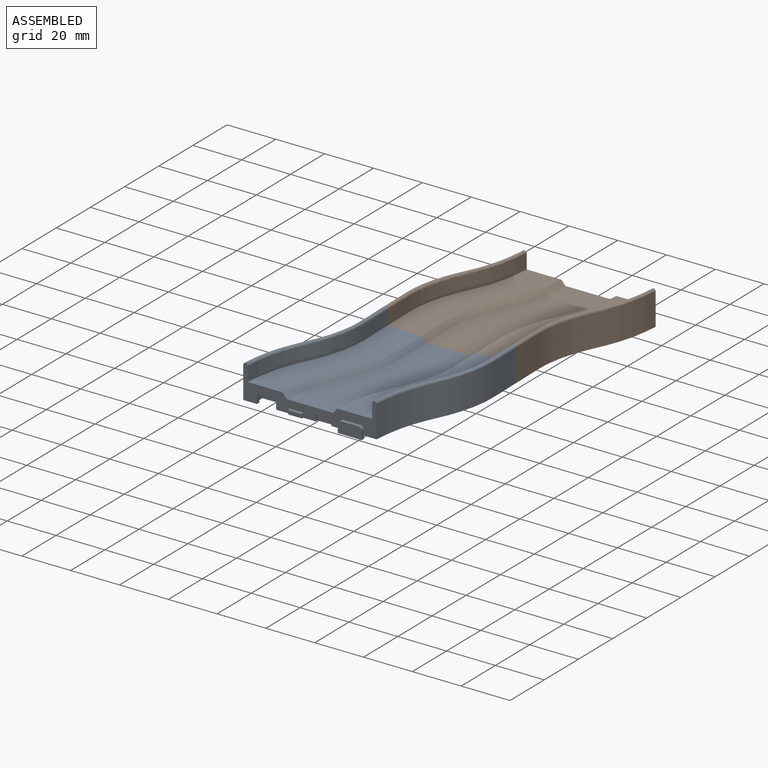
[diagram: assembled view]
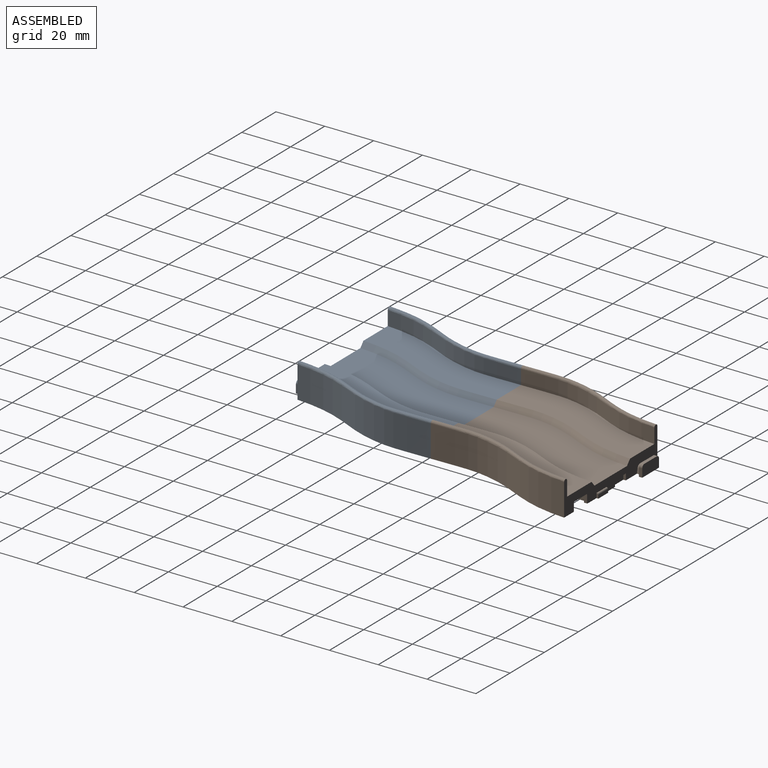
[diagram: assembled view, second angle]
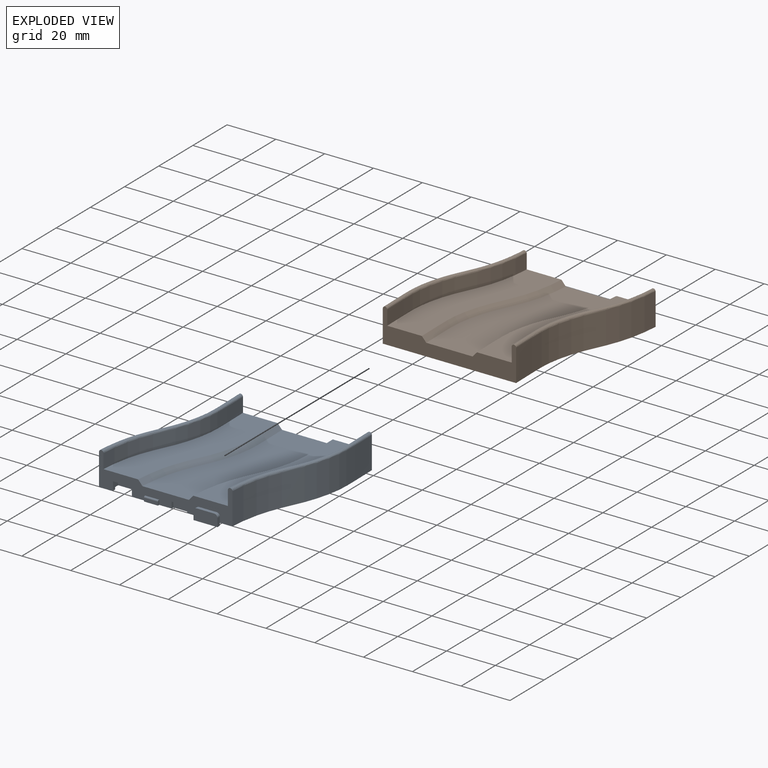
[diagram: exploded view]
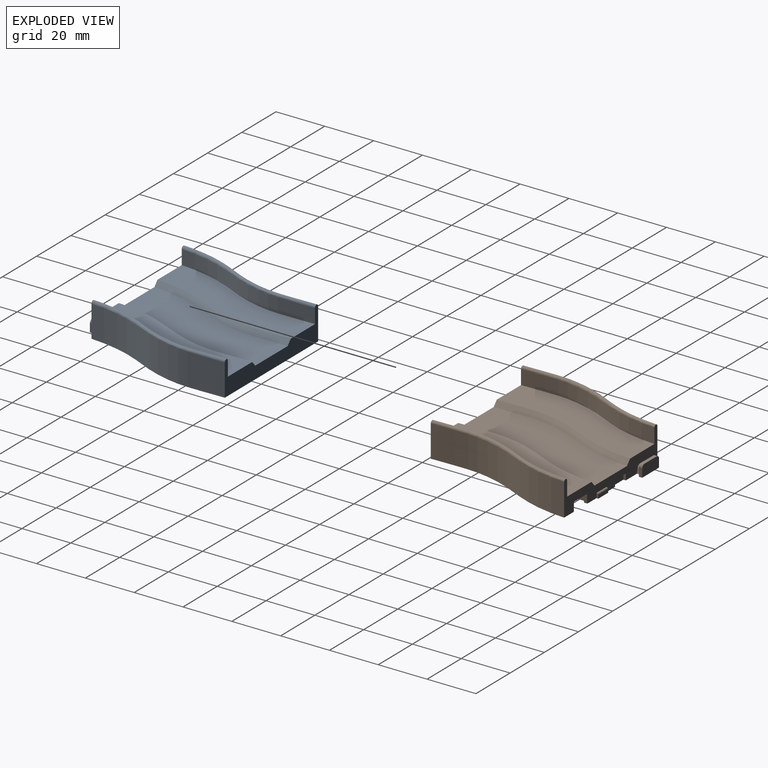
[diagram: exploded view, second angle]
ASSEMBLY  parts=2 mates=2
PART A: 56 faces, bbox 67.5x66.8x14.9 mm
  f0: plane 67.54x66.8mm, normal (0,0,-1), area 3414.4mm2, adj f1,f2,f6,f7,f17,f18,f19,f21
  f1: plane 54.61x13.97mm, normal (0,-1,0), area 296.6mm2, adj f0,f3,f4,f5,f6,f7,f8,f9
  f2: plane 54.61x13.97mm, normal (0,1,0), area 370.2mm2, adj f0,f3,f4,f5,f6,f7,f8,f9
  f3: plane 63.5x27.16mm, normal (0,0,1), area 903.2mm2, adj f1,f2,f4,f13
  f4: bspline ~63.5x12.93mm, area 390.6mm2, adj f1,f2,f3,f5
  f5: bspline ~63.5x14.74mm, area 182.8mm2, adj f1,f2,f4,f6
  f6: bspline ~63.5x13.07mm, area 857mm2, adj f0,f1,f2,f5
  f7: bspline ~63.5x13.07mm, area 857mm2, adj f0,f1,f2,f8
  f8: bspline ~63.5x14.74mm, area 182.8mm2, adj f1,f2,f7,f9
  f9: bspline ~63.5x12.93mm, area 390.6mm2, adj f1,f2,f8,f10
  f10: plane 63.5x27.16mm, normal (0,0,1), area 903.2mm2, adj f1,f2,f9,f11
  f11: bspline ~63.5x14.71mm, area 174.7mm2, adj f1,f2,f10,f12
  f12: plane 63.5x31.93mm, normal (0,0,1), area 1206.4mm2, adj f1,f2,f11,f13
  f13: bspline ~63.5x14.71mm, area 174.7mm2, adj f1,f2,f3,f12
  f14: plane 3.15x1.27mm, normal (1,0,0), area 4mm2, adj f1,f17,f23,f24
  f15: plane 3.15x1.27mm, normal (-1,0,0), area 4mm2, adj f1,f17,f22,f25
  f16: plane 7.24x1.27mm, normal (0,0,-1), area 9.2mm2, adj f1,f17,f22,f23
  f17: plane 10.36x5.61mm, normal (0,1,0), area 29.8mm2, adj f0,f14,f15,f16,f18,f19,f20,f22
  f18: plane 5.61x3.58mm, normal (1,0,0), area 20.1mm2, adj f0,f17,f20,f21
  f19: plane 5.61x3.58mm, normal (-1,0,0), area 20.1mm2, adj f0,f17,f20,f21
  f20: plane 10.36x3.58mm, normal (0,0,-1), area 37.1mm2, adj f17,f18,f19,f21
  f21: plane 10.36x5.61mm, normal (0,-1,0), area 58.2mm2, adj f0,f18,f19,f20
  f22: cylinder r=0.25mm len=1.27mm, axis (0,-1,0), area 0.5mm2, adj f1,f15,f16,f17
  f23: cylinder r=0.25mm len=1.27mm, axis (0,1,0), area 0.5mm2, adj f1,f14,f16,f17
  f24: cylinder r=0.25mm len=1.27mm, axis (0,1,0), area 0.5mm2, adj f0,f1,f14,f17
  f25: cylinder r=0.25mm len=1.27mm, axis (0,-1,0), area 0.5mm2, adj f0,f1,f15,f17
  f26: plane 1.91x1.89mm, normal (-0.98,0,0.2), area 3.7mm2, adj f0,f1,f30,f31
  f27: plane 1.91x1.89mm, normal (0.98,0,0.2), area 3.7mm2, adj f0,f1,f28,f31
  f28: cylinder r=1.6mm len=1.91mm, axis (0,1,0), area 4.2mm2, adj f1,f27,f29,f31
  f29: plane 2.71x1.91mm, normal (0,0,1), area 5.2mm2, adj f1,f28,f30,f31
  f30: cylinder r=1.6mm len=1.91mm, axis (0,1,0), area 4.2mm2, adj f1,f26,f29,f31
  f31: plane 9.8x4.67mm, normal (0,1,0), area 26.9mm2, adj f0,f26,f27,f28,f29,f30,f32,f33
  f32: plane 3.4x1.4mm, normal (1,0,0), area 4.8mm2, adj f0,f31,f33,f37
  f33: cylinder r=1.27mm len=1.4mm, axis (0,1,0), area 2.8mm2, adj f31,f32,f34,f37
  f34: plane 7.26x1.4mm, normal (0,0,1), area 10.1mm2, adj f31,f33,f35,f37
  f35: cylinder r=1.27mm len=1.4mm, axis (0,1,0), area 2.8mm2, adj f31,f34,f36,f37
  f36: plane 3.4x1.4mm, normal (-1,0,0), area 4.8mm2, adj f0,f31,f35,f37
  f37: plane 9.8x4.67mm, normal (0,-1,0), area 45.1mm2, adj f0,f32,f33,f34,f35,f36
  f38: plane 1.91x0.76mm, normal (-1,0,0), area 1.4mm2, adj f0,f1,f40,f41,f42
  f39: plane 1.91x0.76mm, normal (1,0,0), area 1.4mm2, adj f0,f1,f40,f41,f42
  f40: plane 5.72x0.25mm, normal (0,0,1), area 1.5mm2, adj f1,f38,f39,f42
  f41: plane 5.72x1.4mm, normal (0,-1,0), area 8mm2, adj f0,f38,f39,f42
  f42: cylinder r=0.51mm len=5.72mm, axis (1,0,0), area 4.6mm2, adj f38,f39,f40,f41
  f43: plane 2.54x1.02mm, normal (1,0,0), area 2.6mm2, adj f0,f1,f45,f46
  f44: plane 2.54x1.02mm, normal (-1,0,0), area 2.6mm2, adj f0,f1,f45,f46
  f45: plane 6.35x1.02mm, normal (0,0,-1), area 6.5mm2, adj f1,f43,f44,f46
  f46: plane 6.35x2.54mm, normal (0,-1,0), area 16.1mm2, adj f0,f43,f44,f45
  f47: plane 10.73x3.18mm, normal (0,1,0), area 34.1mm2, adj f0,f48,f54,f55
  f48: plane 3.18x1.27mm, normal (-1,0,0), area 4mm2, adj f0,f47,f49,f55
  f49: plane 11.49x3.18mm, normal (0,1,0), area 36.5mm2, adj f0,f48,f50,f55
  f50: plane 3.18x1.27mm, normal (1,0,0), area 4mm2, adj f0,f49,f51,f55
  f51: plane 10.22x3.18mm, normal (0,-1,0), area 32.5mm2, adj f0,f50,f52,f55
  f52: plane 3.18x1.27mm, normal (1,0,0), area 4mm2, adj f0,f51,f53,f55
  f53: plane 12x3.18mm, normal (0,-1,0), area 38.1mm2, adj f0,f52,f54,f55
  f54: plane 3.18x1.27mm, normal (-1,0,0), area 4mm2, adj f0,f47,f53,f55
  f55: plane 22.23x2.54mm, normal (0,0,-1), area 29.8mm2, adj f47,f48,f49,f50,f51,f52,f53,f54
PART B: same geometry as A
PLACE A at identity fixed
PLACE B rot(axis=(0,0,1),180deg) t=(25.4,127,0)mm
MATE planar B.f2 <-> A.f2  axis (0,-1,0) through (12.7,63.5,3.71)mm
MATE fastened A.f2 <-> B.f2  axis (0,1,0) through (12.7,63.5,3.71)mm
